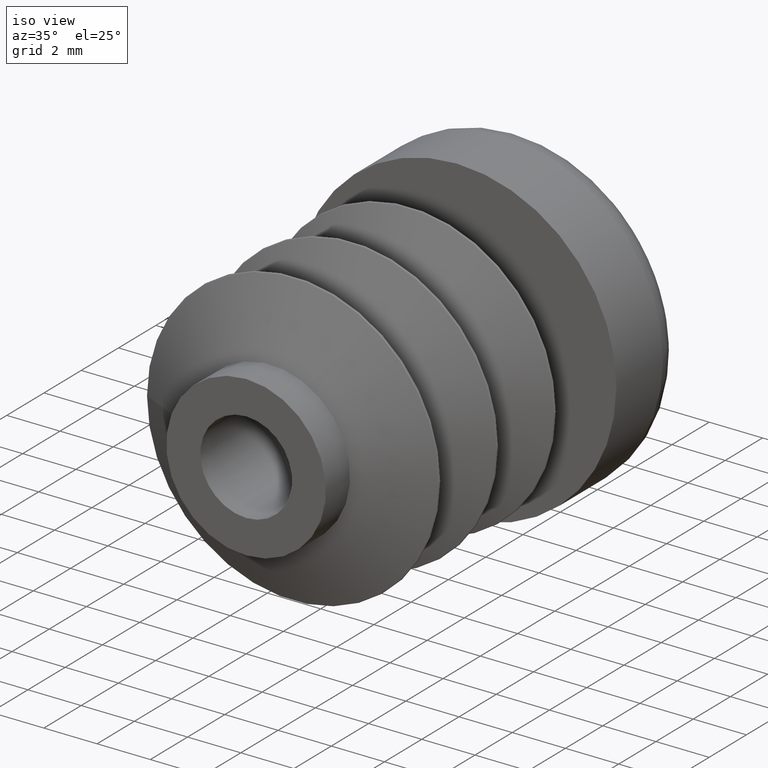
[diagram: clean part render]
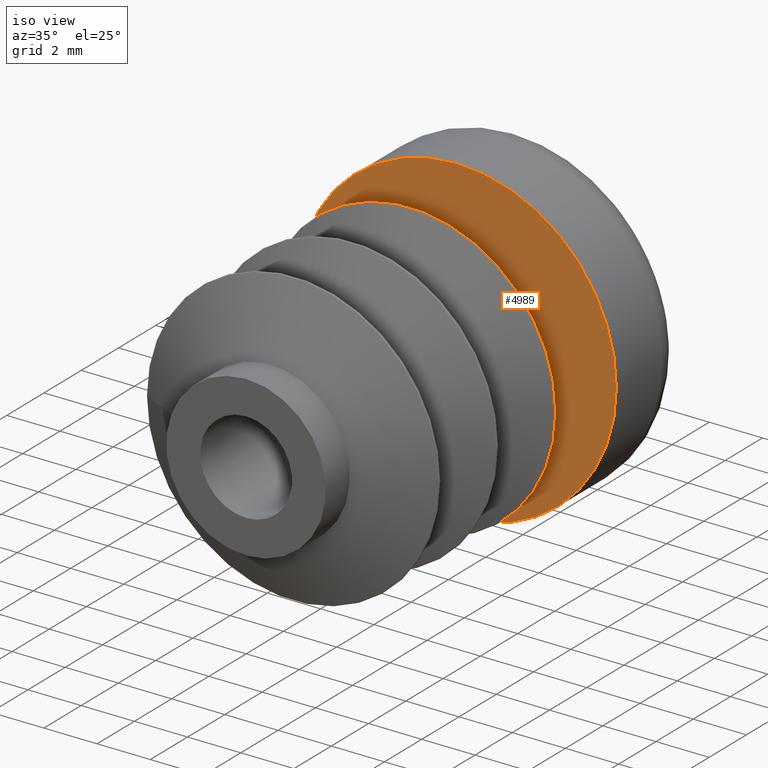
[diagram: same view with one face highlighted and labeled with its STEP entity id]
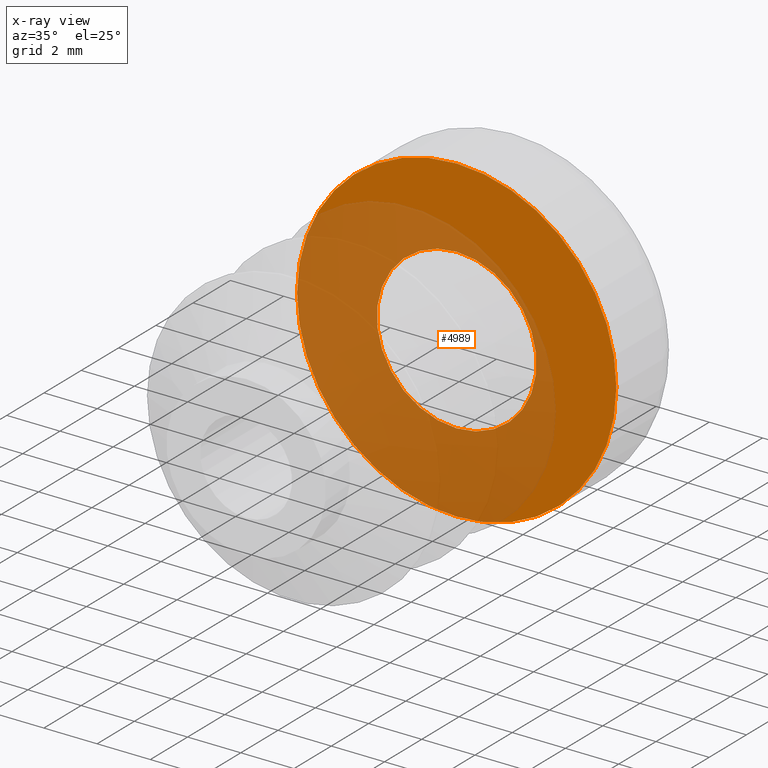
[diagram: x-ray of the same camera — body ghosted, the highlighted face saturated]
A machine part, iso view. The second image highlights one B-rep face of the part: STEP entity #4989.
The next image is the same camera in x-ray: the body ghosted, the highlighted face saturated — about 58% of this face is hidden behind the body in this view.
In plain terms, the highlighted planar face has unit normal (0, -1, -0).
Its self-contained STEP definition (entity closure, byte-faithful):
#104 = DIRECTION ( 'NONE',  ( 0.000000000000000000, -1.000000000000000000, -0.000000000000000000 ) ) ;
#515 = CIRCLE ( 'NONE', #1336, 5.999999999999998224 ) ;
#1124 = DIRECTION ( 'NONE',  ( -0.000000000000000000, -1.000000000000000000, -0.000000000000000000 ) ) ;
#1220 = FACE_OUTER_BOUND ( 'NONE', #4707, .T. ) ;
#1336 = AXIS2_PLACEMENT_3D ( 'NONE', #7984, #1124, #9468 ) ;
#2063 = DIRECTION ( 'NONE',  ( -0.000000000000000000, -1.000000000000000000, -0.000000000000000000 ) ) ;
#2131 = VERTEX_POINT ( 'NONE', #5213 ) ;
#2279 = CARTESIAN_POINT ( 'NONE',  ( 0.000000000000000000, 11.29999999999999893, -3.000000000000006217 ) ) ;
#2510 = DIRECTION ( 'NONE',  ( 0.000000000000000000, 0.000000000000000000, -1.000000000000000000 ) ) ;
#3484 = AXIS2_PLACEMENT_3D ( 'NONE', #9021, #2063, #5172 ) ;
#4154 = EDGE_CURVE ( 'NONE', #2131, #2131, #515, .T. ) ;
#4557 = FACE_BOUND ( 'NONE', #5005, .T. ) ;
#4659 = CARTESIAN_POINT ( 'NONE',  ( 5.999999999999998224, 11.29999999999999893, 0.000000000000000000 ) ) ;
#4707 = EDGE_LOOP ( 'NONE', ( #5818 ) ) ;
#4983 = VERTEX_POINT ( 'NONE', #2279 ) ;
#4989 = ADVANCED_FACE ( 'NONE', ( #1220, #4557 ), #7016, .T. ) ;
#5005 = EDGE_LOOP ( 'NONE', ( #9385 ) ) ;
#5172 = DIRECTION ( 'NONE',  ( 0.000000000000000000, 0.000000000000000000, -1.000000000000000000 ) ) ;
#5213 = CARTESIAN_POINT ( 'NONE',  ( 0.000000000000000000, 11.29999999999999893, -5.999999999999998224 ) ) ;
#5510 = AXIS2_PLACEMENT_3D ( 'NONE', #4659, #104, #2510 ) ;
#5818 = ORIENTED_EDGE ( 'NONE', *, *, #4154, .T. ) ;
#6340 = EDGE_CURVE ( 'NONE', #4983, #4983, #9545, .T. ) ;
#7016 = PLANE ( 'NONE',  #5510 ) ;
#7984 = CARTESIAN_POINT ( 'NONE',  ( 0.000000000000000000, 11.29999999999999893, 0.000000000000000000 ) ) ;
#9021 = CARTESIAN_POINT ( 'NONE',  ( 0.000000000000000000, 11.29999999999999893, 0.000000000000000000 ) ) ;
#9385 = ORIENTED_EDGE ( 'NONE', *, *, #6340, .F. ) ;
#9468 = DIRECTION ( 'NONE',  ( 0.000000000000000000, 0.000000000000000000, -1.000000000000000000 ) ) ;
#9545 = CIRCLE ( 'NONE', #3484, 3.000000000000006217 ) ;